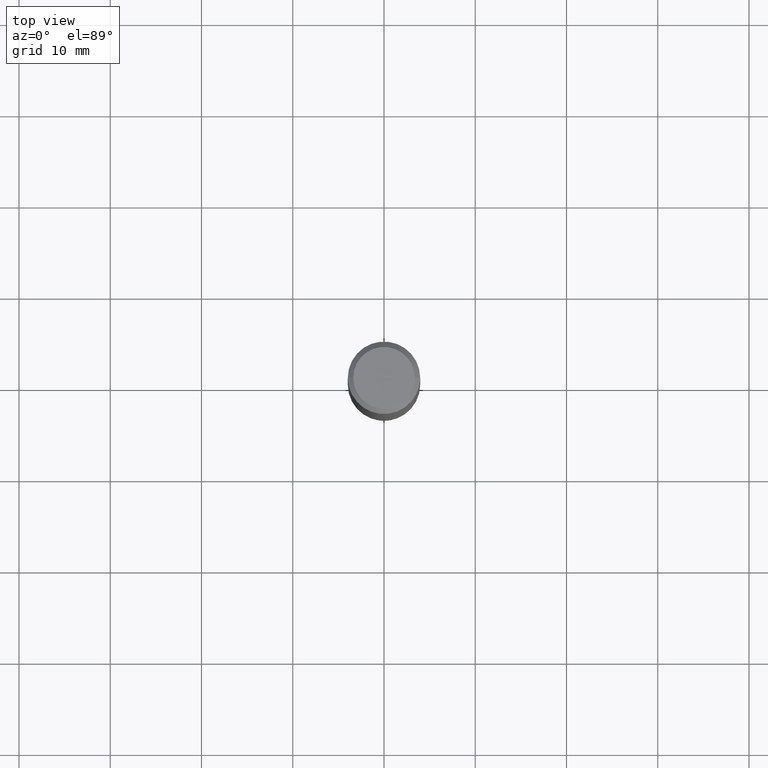
[diagram: clean part render]
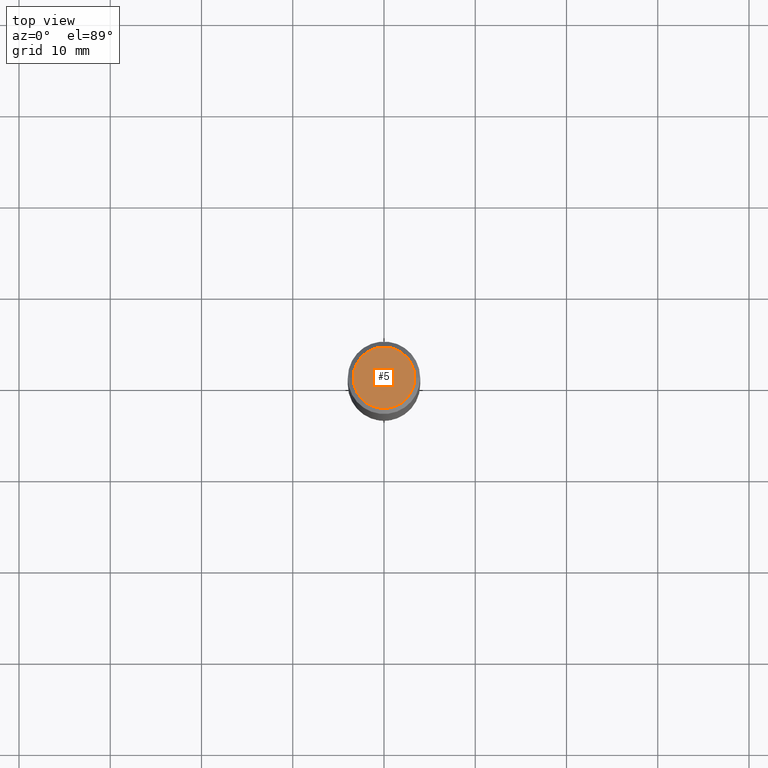
[diagram: same view with one face highlighted and labeled with its STEP entity id]
A machine part, top view. The second image highlights one B-rep face of the part: STEP entity #5.
In plain terms, the highlighted planar face has unit normal (0, -0, -1).
Its self-contained STEP definition (entity closure, byte-faithful):
#5 = ADVANCED_FACE ( 'NONE', ( #99 ), #148, .F. ) ;
#75 = CARTESIAN_POINT ( 'NONE',  ( 0.1328125000000000000, -1.032472148179985084E-15, 3.252968060242010686E-18 ) ) ;
#80 = AXIS2_PLACEMENT_3D ( 'NONE', #413, #335, #485 ) ;
#83 = CARTESIAN_POINT ( 'NONE',  ( -7.955031918821650812E-47, 1.135767727816383927E-32, 3.252968060235157842E-18 ) ) ;
#99 = FACE_OUTER_BOUND ( 'NONE', #330, .T. ) ;
#100 = CARTESIAN_POINT ( 'NONE',  ( -0.1328125000000000000, 9.683405275697749214E-16, 3.252968060228529177E-18 ) ) ;
#101 = CARTESIAN_POINT ( 'NONE',  ( -3.977515959410825406E-47, 5.678838639081919634E-33, 1.626484030117578921E-18 ) ) ;
#110 = DIRECTION ( 'NONE',  ( -2.445468806185136597E-29, 3.491481338843145583E-15, 1.000000000000000000 ) ) ;
#130 = ORIENTED_EDGE ( 'NONE', *, *, #135, .T. ) ;
#133 = ORIENTED_EDGE ( 'NONE', *, *, #481, .T. ) ;
#135 = EDGE_CURVE ( 'NONE', #205, #479, #176, .T. ) ;
#144 = AXIS2_PLACEMENT_3D ( 'NONE', #83, #110, #350 ) ;
#148 = PLANE ( 'NONE',  #240 ) ;
#162 = CIRCLE ( 'NONE', #80, 0.1328125000000000000 ) ;
#176 = CIRCLE ( 'NONE', #144, 0.1328125000000000000 ) ;
#205 = VERTEX_POINT ( 'NONE', #75 ) ;
#225 = DIRECTION ( 'NONE',  ( -1.000000000000000000, 6.982962677686265922E-15, -4.876176775795935793E-29 ) ) ;
#240 = AXIS2_PLACEMENT_3D ( 'NONE', #101, #344, #225 ) ;
#330 = EDGE_LOOP ( 'NONE', ( #133, #130 ) ) ;
#335 = DIRECTION ( 'NONE',  ( -2.445468806185136597E-29, 3.491481338843145583E-15, 1.000000000000000000 ) ) ;
#344 = DIRECTION ( 'NONE',  ( 2.438088387897960049E-29, -3.491481338843145188E-15, -1.000000000000000000 ) ) ;
#350 = DIRECTION ( 'NONE',  ( 1.000000000000000000, -6.982962677686268288E-15, 4.876286914311434227E-29 ) ) ;
#413 = CARTESIAN_POINT ( 'NONE',  ( -7.955031918821650812E-47, 1.135767727816383927E-32, 3.252968060235157842E-18 ) ) ;
#479 = VERTEX_POINT ( 'NONE', #100 ) ;
#481 = EDGE_CURVE ( 'NONE', #479, #205, #162, .T. ) ;
#485 = DIRECTION ( 'NONE',  ( 1.000000000000000000, -6.982962677686268288E-15, 4.876286914311434227E-29 ) ) ;